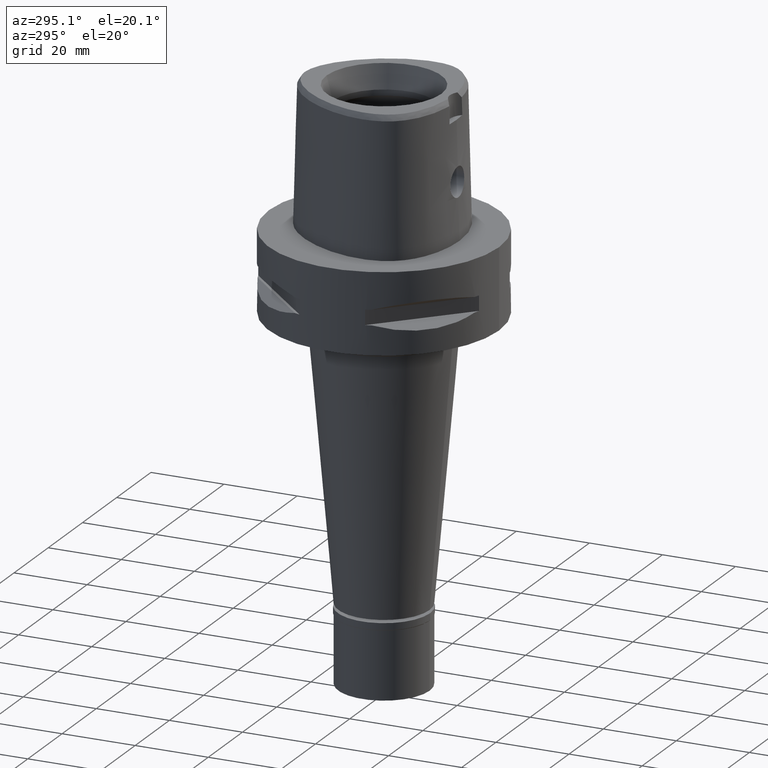
[diagram: clean part render]
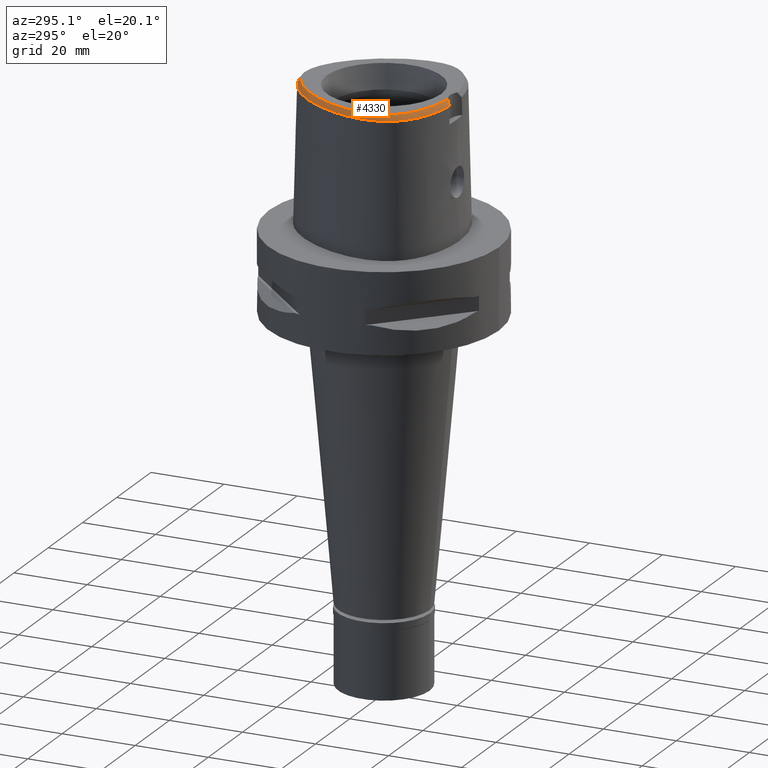
[diagram: same view with one face highlighted and labeled with its STEP entity id]
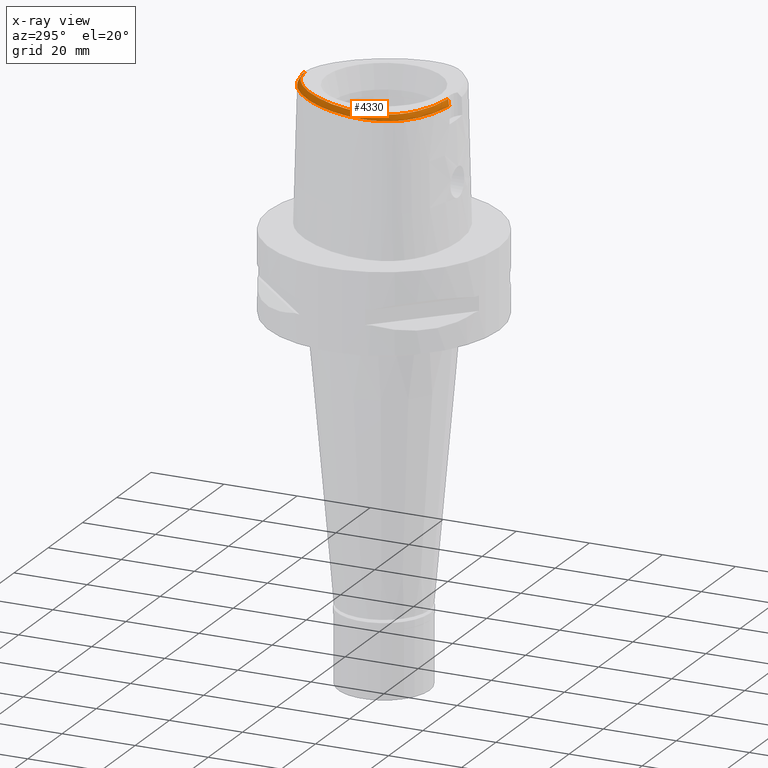
[diagram: x-ray of the same camera — body ghosted, the highlighted face saturated]
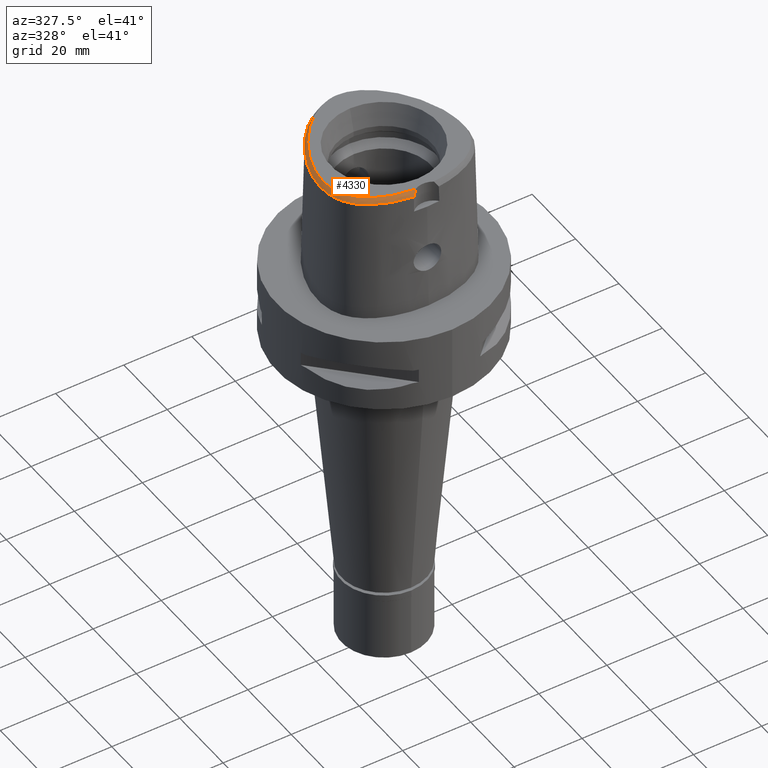
[diagram: same view with one face highlighted and labeled with its STEP entity id]
A machine part, auxiliary view. The second image highlights one B-rep face of the part: STEP entity #4330.
The next image is the same camera in x-ray: the body ghosted, the highlighted face saturated — about 0% of this face is hidden behind the body in this view.
A second angle (auxiliary view) of the same face is appended — the face is thin or edge-on in the first view.
In plain terms, the highlighted face is a freeform B-spline surface patch.
Its self-contained STEP definition (entity closure, byte-faithful):
#7 = CARTESIAN_POINT ( 'NONE',  ( -20.92147064322999839, -2.116709732244000275, 36.95369740508999712 ) ) ;
#25 = CARTESIAN_POINT ( 'NONE',  ( -11.46564124494626391, 15.92741340512973736, 37.99999999999744915 ) ) ;
#26 = CARTESIAN_POINT ( 'NONE',  ( 0.6289267705504999473, 22.28958895309000354, 36.95369737696000101 ) ) ;
#28 = CARTESIAN_POINT ( 'NONE',  ( -14.16768691555000004, 14.38231071795000027, 36.33926728082000324 ) ) ;
#43 = EDGE_CURVE ( 'NONE', #2735, #2066, #4693, .T. ) ;
#50 = CARTESIAN_POINT ( 'NONE',  ( -18.24302769442356009, 5.671232572958217588, 37.99999999999732836 ) ) ;
#53 = CARTESIAN_POINT ( 'NONE',  ( -21.36527818550999669, -3.234143585310999658, 36.33926776583000162 ) ) ;
#71 = CARTESIAN_POINT ( 'NONE',  ( -2.735698246182939553, 21.34559102902487027, 37.99999999999988631 ) ) ;
#75 = CARTESIAN_POINT ( 'NONE',  ( -20.29251928503000002, -4.310408830160000093, 38.18255744116999750 ) ) ;
#97 = CARTESIAN_POINT ( 'NONE',  ( -18.99520880203911588, -10.46968343926494427, 38.00000000000672884 ) ) ;
#102 = CARTESIAN_POINT ( 'NONE',  ( -19.44795708252000210, -9.190277671089001288, 38.18255740862999659 ) ) ;
#118 = DIRECTION ( 'NONE',  ( -1.028870294958013158E-11, -0.5092834681090075977, 0.8605988316927122295 ) ) ;
#133 = CARTESIAN_POINT ( 'NONE',  ( -20.89395157519000179, -6.256864602135999931, 36.95369798106999326 ) ) ;
#156 = CARTESIAN_POINT ( 'NONE',  ( -15.35613913231000005, -15.33514880510999845, 36.95369830678999534 ) ) ;
#165 = CARTESIAN_POINT ( 'NONE',  ( -7.073975453994999718, 20.18823819710999956, 36.95369769004000204 ) ) ;
#180 = CARTESIAN_POINT ( 'NONE',  ( -19.51946603146000214, -9.973870512151000511, 37.56812762266999783 ) ) ;
#189 = CARTESIAN_POINT ( 'NONE',  ( -13.32044662396000057, 13.69457079475000150, 38.18255751709000378 ) ) ;
#208 = CARTESIAN_POINT ( 'NONE',  ( -15.14873605808000079, -15.03626224452000137, 37.56812782930999361 ) ) ;
#220 = CARTESIAN_POINT ( 'NONE',  ( -8.730759612675999648, 18.65177153628000184, 37.56812743417000178 ) ) ;
#235 = CARTESIAN_POINT ( 'NONE',  ( -3.549775043671000052, -18.96231541947999943, 37.56812780826999898 ) ) ;
#244 = CARTESIAN_POINT ( 'NONE',  ( -4.604683579792999915, 21.78549079069999905, 36.33926777342999515 ) ) ;
#267 = CARTESIAN_POINT ( 'NONE',  ( -11.64753432682999978, 16.10709456885999913, 37.56812858085999807 ) ) ;
#273 = CARTESIAN_POINT ( 'NONE',  ( -1.703794773535000090E-11, 22.56201468012000078, 36.52186680743999858 ) ) ;
#282 = CARTESIAN_POINT ( 'NONE',  ( -2.340097459394999913, -19.79172375898000169, 36.33926876481999813 ) ) ;
#286 = CARTESIAN_POINT ( 'NONE',  ( -12.37132652997626536, -16.34104299088001611, 38.00000000000188294 ) ) ;
#313 = CARTESIAN_POINT ( 'NONE',  ( -11.69194181865000104, -17.71727317434999804, 36.33926754198000708 ) ) ;
#337 = CARTESIAN_POINT ( 'NONE',  ( -4.691700671387000199, -18.46023128026000037, 38.18255745641999965 ) ) ;
#339 = CARTESIAN_POINT ( 'NONE',  ( -3.339321438887166149, -19.25325016376296716, 37.10705438588944816 ) ) ;
#366 = CARTESIAN_POINT ( 'NONE',  ( -16.79122632845000140, 8.466764119743000805, 38.18255741672999903 ) ) ;
#394 = CARTESIAN_POINT ( 'NONE',  ( -20.61915681830999958, -5.295012521149999429, 37.56812783671999512 ) ) ;
#411 = CARTESIAN_POINT ( 'NONE',  ( -10.48962422759357871, 16.86631853279266124, 38.00000000000303402 ) ) ;
#412 = CARTESIAN_POINT ( 'NONE',  ( 0.3873224197701999882, 21.57393274058000188, 38.18255746055999822 ) ) ;
#416 = CARTESIAN_POINT ( 'NONE',  ( -20.77260507820999536, -0.9169822542518999420, 36.95369801481999872 ) ) ;
#423 = EDGE_CURVE ( 'NONE', #2066, #1132, #503, .T. ) ;
#433 = CARTESIAN_POINT ( 'NONE',  ( -4.757642277158413258, 21.67478330407710629, 36.52186244848005714 ) ) ;
#436 = CARTESIAN_POINT ( 'NONE',  ( -9.524337278001089757, 17.70558492631798231, 38.00000000000370903 ) ) ;
#439 = CARTESIAN_POINT ( 'NONE',  ( -20.59663228552999925, 1.764793281405000025, 36.33927213263000056 ) ) ;
#467 = CARTESIAN_POINT ( 'NONE',  ( -18.69494656516000219, 4.219276995192998925, 38.18255752865000119 ) ) ;
#490 = CARTESIAN_POINT ( 'NONE',  ( -21.25508366611000000, -6.300874089841999925, 36.33926826727000048 ) ) ;
#503 = LINE ( 'NONE', #2024, #4742 ) ;
#509 = CARTESIAN_POINT ( 'NONE',  ( -20.15090095364822176, -7.024227649787408545, 38.00000000000397904 ) ) ;
#516 = CARTESIAN_POINT ( 'NONE',  ( -19.12497591769000138, -12.14921629138999926, 36.33926750876999989 ) ) ;
#546 = CARTESIAN_POINT ( 'NONE',  ( -18.18393835204000197, -13.33950269444000014, 36.33926785797999770 ) ) ;
#557 = CARTESIAN_POINT ( 'NONE',  ( -11.90631571408999889, 16.36272903463000006, 36.95370012758999678 ) ) ;
#571 = CARTESIAN_POINT ( 'NONE',  ( -14.15343956157999905, -15.25309208026999919, 38.18255740488999805 ) ) ;
#580 = CARTESIAN_POINT ( 'NONE',  ( -12.63164210699000023, 15.06184036072000154, 37.56812780431999954 ) ) ;
#594 = CARTESIAN_POINT ( 'NONE',  ( -13.28312088783000178, -15.75643240474999729, 38.18255746722999788 ) ) ;
#605 = CARTESIAN_POINT ( 'NONE',  ( -8.947778726257000770, 18.94371772858000114, 36.95369734948000229 ) ) ;
#623 = CARTESIAN_POINT ( 'NONE',  ( -6.236709619031000074, -18.56936891179000071, 37.56812752670000322 ) ) ;
#633 = CARTESIAN_POINT ( 'NONE',  ( -5.162808560725999918, 20.76779773026999720, 37.56812770494000375 ) ) ;
#649 = CARTESIAN_POINT ( 'NONE',  ( -4.743174543436999180, -18.82031605083000159, 37.56812758189000334 ) ) ;
#662 = CARTESIAN_POINT ( 'NONE',  ( -5.311607256956000001, 21.09977700078000140, 36.95369800548999706 ) ) ;
#676 = CARTESIAN_POINT ( 'NONE',  ( -12.48085809552999947, -16.57208682407000211, 37.56812752467000394 ) ) ;
#679 = CARTESIAN_POINT ( 'NONE',  ( -10.17136073855220069, -17.24644253470149025, 38.00000000000613909 ) ) ;
#703 = CARTESIAN_POINT ( 'NONE',  ( -10.49819849688999973, -18.17373738543999906, 36.33927043530999867 ) ) ;
#707 = CARTESIAN_POINT ( 'NONE',  ( -2.841965291530327065, -18.76757795571511878, 37.99999999999839417 ) ) ;
#709 = B_SPLINE_SURFACE_WITH_KNOTS ( 'NONE', 3, 3, ( 
 ( #3985, #2402, #26, #2008 ),
 ( #412, #3591, #2821, #1232 ),
 ( #1623, #2597, #2152, #3424 ),
 ( #1783, #3449, #4627, #4197 ),
 ( #3842, #1027, #2987, #2203 ),
 ( #4551, #4965, #3736, #1423 ),
 ( #3065, #3374, #5018, #4939 ),
 ( #4987, #2574, #4224, #1449 ),
 ( #1060, #2620, #3036, #244 ),
 ( #3789, #633, #662, #4572 ),
 ( #2257, #1087, #4601, #1862 ),
 ( #2676, #3816, #165, #1759 ),
 ( #1399, #4168, #2233, #1002 ),
 ( #4911, #220, #605, #3343 ),
 ( #2175, #1813, #1370, #1479 ),
 ( #4145, #3398, #2960, #978 ),
 ( #2653, #267, #557, #4528 ),
 ( #1837, #580, #3760, #3010 ),
 ( #189, #3621, #2869, #28 ),
 ( #2451, #2824, #828, #1602 ),
 ( #4798, #883, #1627, #4435 ),
 ( #2423, #1206, #1251, #2482 ),
 ( #366, #1963, #2383, #3159 ),
 ( #5115, #2843, #3988, #4029 ),
 ( #2798, #3553, #4776, #3575 ),
 ( #467, #4007, #2062, #4725 ),
 ( #1648, #3211, #4388, #1581 ),
 ( #1182, #1234, #4407, #439 ),
 ( #4367, #3647, #4750, #3233 ),
 ( #809, #2405, #416, #850 ),
 ( #780, #2011, #7, #2771 ),
 ( #3254, #4340, #2035, #53 ),
 ( #75, #3595, #1672, #3967 ),
 ( #4819, #394, #1276, #1988 ),
 ( #3181, #3390, #133, #490 ),
 ( #911, #2586, #3362, #4929 ),
 ( #965, #1389, #3750, #2977 ),
 ( #2562, #4158, #2948, #3000 ),
 ( #102, #2089, #4080, #4953 ),
 ( #1799, #180, #1728, #2509 ),
 ( #2535, #1412, #4562, #1699 ),
 ( #3726, #4108, #3674, #3285 ),
 ( #1333, #4852, #1015, #516 ),
 ( #936, #1309, #4464, #2899 ),
 ( #3312, #4488, #4055, #546 ),
 ( #1773, #3776, #4879, #2114 ),
 ( #4137, #4901, #2191, #4516 ),
 ( #2143, #3701, #2925, #3335 ),
 ( #1358, #208, #156, #1752 ),
 ( #571, #2166, #4542, #993 ),
 ( #594, #3494, #3103, #4643 ),
 ( #1905, #676, #1100, #1125 ),
 ( #1545, #4288, #3129, #313 ),
 ( #2720, #2641, #4697, #703 ),
 ( #3807, #5061, #3438, #1076 ),
 ( #5004, #2667, #1826, #2270 ),
 ( #4185, #623, #4215, #1466 ),
 ( #337, #649, #4588, #4616 ),
 ( #3024, #235, #1519, #4667 ),
 ( #4977, #3054, #3886, #3080 ),
 ( #4236, #3412, #3855, #282 ),
 ( #1877, #732, #2610, #2327 ) ),
 .UNSPECIFIED., .F., .F., .F.,
 ( 4, 1, 1, 1, 1, 1, 1, 1, 1, 1, 1, 1, 1, 1, 1, 1, 1, 1, 1, 1, 1, 1, 1, 1, 1, 1, 1, 1, 1, 1, 1, 1, 1, 1, 1, 1, 1, 1, 1, 1, 1, 1, 1, 1, 1, 1, 1, 1, 1, 1, 1, 1, 1, 1, 1, 1, 1, 1, 1, 4 ),
 ( 4, 4 ),
 ( -0.01585043674195000044, 0.0000000000000000000, 0.01776034072165999858, 0.03552068144391999638, 0.05328102216616999870, 0.07104136288842999303, 0.08880170361069000817, 0.1065620443330000111, 0.1243223850551999909, 0.1420827257775000019, 0.1598430664997000095, 0.1776034072219000171, 0.1953637479442000002, 0.2131240886664000078, 0.2308844293887999943, 0.2486447701109999742, 0.2664051108332999851, 0.2841654515554999927, 0.3019257922778000314, 0.3196861329999999835, 0.3374464737223000221, 0.3552068144444999742, 0.3729671551668000129, 0.3907274958890999961, 0.4084878366113000037, 0.4262481773335999868, 0.4440085180557999944, 0.4617688587780999776, 0.4795291995003000407, 0.4972895402225999684, 0.5150498809447999760, 0.5328102216671000146, 0.5505705623893999423, 0.5683309031115999499, 0.5860912438338999886, 0.6038515845561001072, 0.6216119252783999238, 0.6393722660005999314, 0.6571326067228999701, 0.6748929474452000088, 0.6926532881674000164, 0.7104136288896999440, 0.7281739696118999516, 0.7459343103341999903, 0.7636946510563999979, 0.7814549917787000366, 0.7992153325008999332, 0.8169756732231999719, 0.8347360139455000105, 0.8524963546678000492, 0.8702566953900000568, 0.8880170361122000644, 0.9057773768344999921, 0.9235377175566999997, 0.9412980582790000383, 0.9590583990012000459, 0.9768187397236000047, 0.9945790804457999013, 1.000000000000000000, 1.006922200500000031 ),
 ( -0.09952382276335999811, 1.099545837143999893 ),
 .UNSPECIFIED. ) ;
#732 = CARTESIAN_POINT ( 'NONE',  ( -2.084302360773999663, -19.07887738431000102, 37.56812781015999292 ) ) ;
#780 = CARTESIAN_POINT ( 'NONE',  ( -20.19742045219999937, -2.187964372695000215, 38.18255750915999869 ) ) ;
#803 = CARTESIAN_POINT ( 'NONE',  ( -3.481017203588950615, 21.13509756881196466, 38.00000000000138556 ) ) ;
#809 = CARTESIAN_POINT ( 'NONE',  ( -20.05326577673999822, -1.025875127106000040, 38.18255740276999433 ) ) ;
#822 = CARTESIAN_POINT ( 'NONE',  ( -21.07430010673179410, -0.4408303445193112458, 36.52186244848005714 ) ) ;
#825 = CARTESIAN_POINT ( 'NONE',  ( -16.09805956313502406, 9.908742513517120543, 38.00000000000807177 ) ) ;
#828 = CARTESIAN_POINT ( 'NONE',  ( -14.84304560970999987, 12.91456535701999897, 36.95369814816000087 ) ) ;
#837 = B_SPLINE_CURVE_WITH_KNOTS ( 'NONE', 3,
 ( #2331, #4722, #339, #3890 ),
 .UNSPECIFIED., .F., .F.,
 ( 4, 4 ),
 ( 0.0000000000000000000, 1.000000000000000000 ),
 .UNSPECIFIED. ) ;
#845 = CARTESIAN_POINT ( 'NONE',  ( -20.30498420086393452, -2.177378896257883500, 38.00000000000625988 ) ) ;
#850 = CARTESIAN_POINT ( 'NONE',  ( -21.13227472894000059, -0.8625358178249000751, 36.33926832085000314 ) ) ;
#883 = CARTESIAN_POINT ( 'NONE',  ( -15.45985386675000051, 11.39869137622000039, 37.56812783854999793 ) ) ;
#892 = CARTESIAN_POINT ( 'NONE',  ( -3.470944899480999815E-11, 21.68728795390000030, 38.00000000000000000 ) ) ;
#907 = CARTESIAN_POINT ( 'NONE',  ( -19.98419490691469491, -7.809898894995823682, 37.99999999999914735 ) ) ;
#911 = CARTESIAN_POINT ( 'NONE',  ( -20.04453279968999979, -7.004985849489999694, 38.18255748050999898 ) ) ;
#929 = CARTESIAN_POINT ( 'NONE',  ( -1.703794773535000090E-11, 22.56201468012000078, 36.52186680743999858 ) ) ;
#936 = CARTESIAN_POINT ( 'NONE',  ( -17.82526424565000056, -12.07072610718000050, 38.18255739203000587 ) ) ;
#965 = CARTESIAN_POINT ( 'NONE',  ( -19.87913771971999921, -7.784445344282000079, 38.18255747433999403 ) ) ;
#978 = CARTESIAN_POINT ( 'NONE',  ( -11.15382432340000030, 17.59124342496999915, 36.33927187414000315 ) ) ;
#993 = CARTESIAN_POINT ( 'NONE',  ( -14.72469410495000020, -16.18301840595999863, 36.33926830152999798 ) ) ;
#1002 = CARTESIAN_POINT ( 'NONE',  ( -8.199366118679000337, 19.91347969987999988, 36.33926784298999735 ) ) ;
#1015 = CARTESIAN_POINT ( 'NONE',  ( -18.82622316747999847, -11.94154976933000079, 36.95369750318999991 ) ) ;
#1027 = CARTESIAN_POINT ( 'NONE',  ( -1.355466021452000014, 21.86473887791999715, 37.56812741837999425 ) ) ;
#1060 = CARTESIAN_POINT ( 'NONE',  ( -4.216071405948000006, 20.76559193177000040, 38.18255746293999664 ) ) ;
#1076 = CARTESIAN_POINT ( 'NONE',  ( -9.209811283971999885, -18.59256748385999813, 36.33927205204999922 ) ) ;
#1078 = CARTESIAN_POINT ( 'NONE',  ( -2.682279906006999948, -18.78035848609999903, 38.00000000000000000 ) ) ;
#1087 = CARTESIAN_POINT ( 'NONE',  ( -6.011059413787000594, 20.35945456055000236, 37.56812774185000592 ) ) ;
#1100 = CARTESIAN_POINT ( 'NONE',  ( -12.63668991822000010, -16.90079555257999999, 36.95369756873999734 ) ) ;
#1103 = CARTESIAN_POINT ( 'NONE',  ( -4.706994425064510601, -18.56721852572643172, 38.00000000000746070 ) ) ;
#1125 = CARTESIAN_POINT ( 'NONE',  ( -12.79252174089999983, -17.22950428108000054, 36.33926761281000495 ) ) ;
#1130 = CARTESIAN_POINT ( 'NONE',  ( -17.91005512243567210, -12.13778127739915469, 37.99999999999945288 ) ) ;
#1132 = VERTEX_POINT ( 'NONE', #892 ) ;
#1155 = CARTESIAN_POINT ( 'NONE',  ( -15.71788912669399352, -14.29843101565927377, 37.99999999999455724 ) ) ;
#1182 = CARTESIAN_POINT ( 'NONE',  ( -19.53965903295999951, 1.493372122925999967, 38.18255698374999696 ) ) ;
#1202 = CARTESIAN_POINT ( 'NONE',  ( -19.26324493738480470, 2.868570891456998950, 38.00000000000506617 ) ) ;
#1206 = CARTESIAN_POINT ( 'NONE',  ( -16.31743383605000020, 10.04004715791000102, 37.56812757850999418 ) ) ;
#1231 = CARTESIAN_POINT ( 'NONE',  ( -15.24692477332553686, 11.25717358966314485, 38.00000000000265032 ) ) ;
#1232 = CARTESIAN_POINT ( 'NONE',  ( 0.4278526769691000098, 22.66417900368000105, 36.33926779507000049 ) ) ;
#1234 = CARTESIAN_POINT ( 'NONE',  ( -19.89198345048000149, 1.583845842419000061, 37.56812870004000615 ) ) ;
#1246 = CARTESIAN_POINT ( 'NONE',  ( -17.90324032096644302, -13.53935111954995207, 36.52186244848005714 ) ) ;
#1251 = CARTESIAN_POINT ( 'NONE',  ( -16.62954014644000011, 10.22685579118000021, 36.95369769917000013 ) ) ;
#1270 = CARTESIAN_POINT ( 'NONE',  ( -5.893543501600900569, 20.13235399351656696, 38.00000000000505196 ) ) ;
#1276 = CARTESIAN_POINT ( 'NONE',  ( -20.98219059448000223, -5.318546722515000269, 36.95369832475000038 ) ) ;
#1301 = CARTESIAN_POINT ( 'NONE',  ( -19.88562090098768564, 4.345879983791615331, 36.52186244848005714 ) ) ;
#1304 = CARTESIAN_POINT ( 'NONE',  ( -20.27898581531853495, -6.181921586190053830, 37.99999999999572964 ) ) ;
#1309 = CARTESIAN_POINT ( 'NONE',  ( -18.11064315489000265, -12.29641231377999944, 37.56812773418999996 ) ) ;
#1333 = CARTESIAN_POINT ( 'NONE',  ( -18.22871766705999974, -11.52621672519999940, 38.18255749202999993 ) ) ;
#1358 = CARTESIAN_POINT ( 'NONE',  ( -14.94133298384999975, -14.73737568391999986, 38.18255735182999899 ) ) ;
#1370 = CARTESIAN_POINT ( 'NONE',  ( -9.919125040175002184, 18.18293205626000031, 36.95369866842000306 ) ) ;
#1389 = CARTESIAN_POINT ( 'NONE',  ( -20.23272653288000100, -7.870113836157001330, 37.56812753946999806 ) ) ;
#1399 = CARTESIAN_POINT ( 'NONE',  ( -7.595407440080000683, 19.00449911577999984, 38.18255745529000222 ) ) ;
#1412 = CARTESIAN_POINT ( 'NONE',  ( -19.22184362975000127, -10.58817459622000179, 37.56812749740999635 ) ) ;
#1423 = CARTESIAN_POINT ( 'NONE',  ( -2.198784943771000311, 22.46925618198000052, 36.33926778522999257 ) ) ;
#1449 = CARTESIAN_POINT ( 'NONE',  ( -3.776930538523000092, 22.07287095113999698, 36.33926826387999398 ) ) ;
#1466 = CARTESIAN_POINT ( 'NONE',  ( -6.374238655745999793, -19.28374802939000077, 36.33926762062999671 ) ) ;
#1479 = CARTESIAN_POINT ( 'NONE',  ( -10.15095994762000053, 18.46324907287999650, 36.33926935826999483 ) ) ;
#1496 = CARTESIAN_POINT ( 'NONE',  ( -16.36032397154061258, -13.76458520345272341, 38.00000000000350298 ) ) ;
#1519 = CARTESIAN_POINT ( 'NONE',  ( -3.588014974792000267, -19.32396908895999843, 36.95369825582000090 ) ) ;
#1521 = CARTESIAN_POINT ( 'NONE',  ( -11.31790883121207969, -16.80796958613478864, 37.99999999999740652 ) ) ;
#1545 = CARTESIAN_POINT ( 'NONE',  ( -11.27679292332999950, -16.70801358272000314, 38.18255748837999164 ) ) ;
#1550 = CARTESIAN_POINT ( 'NONE',  ( -17.45119705493836904, -12.68365517585379187, 38.00000000000307665 ) ) ;
#1576 = CARTESIAN_POINT ( 'NONE',  ( -8.930096025510261271, -17.65000298921394517, 37.99999999999953104 ) ) ;
#1581 = CARTESIAN_POINT ( 'NONE',  ( -20.20233240157000054, 3.159690596148000186, 36.33926991292999276 ) ) ;
#1598 = CARTESIAN_POINT ( 'NONE',  ( -13.40435640711272747, 13.76268382997135298, 37.99999999999702283 ) ) ;
#1602 = CARTESIAN_POINT ( 'NONE',  ( -15.13609080432999932, 13.13005028183000000, 36.33926853247999844 ) ) ;
#1623 = CARTESIAN_POINT ( 'NONE',  ( -0.02532435228039000077, 21.58521746514999862, 38.18255742366999783 ) ) ;
#1627 = CARTESIAN_POINT ( 'NONE',  ( -15.76279054588999884, 11.60003036474000027, 36.95369832918999720 ) ) ;
#1641 = CARTESIAN_POINT ( 'NONE',  ( -21.32871527669848533, -4.105831244393919555, 36.52186244848005714 ) ) ;
#1645 = CARTESIAN_POINT ( 'NONE',  ( -0.2181979014508348969, 21.68728795389360897, 37.99999999999755573 ) ) ;
#1648 = CARTESIAN_POINT ( 'NONE',  ( -19.16001491499000053, 2.836569299718999737, 38.18255722776000738 ) ) ;
#1666 = CARTESIAN_POINT ( 'NONE',  ( -13.70645028111365527, 15.04851272300774845, 36.52186244848005714 ) ) ;
#1668 = CARTESIAN_POINT ( 'NONE',  ( -4.254559144977395846, 20.86660163697408521, 37.99999999999924682 ) ) ;
#1672 = CARTESIAN_POINT ( 'NONE',  ( -21.02006458961999869, -4.317199258171999787, 36.95369779474000183 ) ) ;
#1694 = CARTESIAN_POINT ( 'NONE',  ( -19.78262210840474467, -8.543146992552438590, 38.00000000000077449 ) ) ;
#1699 = CARTESIAN_POINT ( 'NONE',  ( -19.86671560079000187, -10.92533206978999871, 36.33926750797999716 ) ) ;
#1720 = CARTESIAN_POINT ( 'NONE',  ( -10.91891098965177420, -18.03046406390702217, 36.52186244848005714 ) ) ;
#1728 = CARTESIAN_POINT ( 'NONE',  ( -19.85173883435999898, -10.12210006960000008, 36.95369780616999833 ) ) ;
#1747 = CARTESIAN_POINT ( 'NONE',  ( -21.14970188363901116, -6.717195958887973717, 36.52186244848005714 ) ) ;
#1752 = CARTESIAN_POINT ( 'NONE',  ( -15.56354220655000020, -15.63403536570999819, 36.33926878427000418 ) ) ;
#1759 = CARTESIAN_POINT ( 'NONE',  ( -7.258686705342000778, 20.50164200618999999, 36.33926780534999779 ) ) ;
#1773 = CARTESIAN_POINT ( 'NONE',  ( -16.86030798744999970, -13.14913462574999947, 38.18255747004999989 ) ) ;
#1783 = CARTESIAN_POINT ( 'NONE',  ( -0.6431255064981999947, 21.56589148699999825, 38.18255748684999418 ) ) ;
#1799 = CARTESIAN_POINT ( 'NONE',  ( -19.18719322855999820, -9.825640954705999519, 38.18255743916999734 ) ) ;
#1813 = CARTESIAN_POINT ( 'NONE',  ( -9.687290132726998237, 17.90261503964000056, 37.56812797857999442 ) ) ;
#1826 = CARTESIAN_POINT ( 'NONE',  ( -7.745987544590000162, -18.61193247438999876, 36.95369958702000446 ) ) ;
#1837 = CARTESIAN_POINT ( 'NONE',  ( -12.36065378014999894, 14.81918995474000056, 38.18255736239000697 ) ) ;
#1855 = ORIENTED_EDGE ( 'NONE', *, *, #3168, .T. ) ;
#1862 = CARTESIAN_POINT ( 'NONE',  ( -6.345441903388000071, 21.00565175698999809, 36.33926844794999766 ) ) ;
#1877 = CARTESIAN_POINT ( 'NONE',  ( -2.061974916248999978, -18.71595758687000099, 38.18255735992000410 ) ) ;
#1905 = CARTESIAN_POINT ( 'NONE',  ( -12.32502627284999974, -16.24337809556000067, 38.18255748059999632 ) ) ;
#1963 = CARTESIAN_POINT ( 'NONE',  ( -17.11181643331000046, 8.638606699664999056, 37.56812767577999779 ) ) ;
#1988 = CARTESIAN_POINT ( 'NONE',  ( -21.34522437065999867, -5.342080923879999332, 36.33926881277999854 ) ) ;
#1996 = ORIENTED_EDGE ( 'NONE', *, *, #43, .F. ) ;
#2006 = CARTESIAN_POINT ( 'NONE',  ( -20.38301517463031942, -3.278344853328307273, 38.00000000000193268 ) ) ;
#2008 = CARTESIAN_POINT ( 'NONE',  ( 0.6490938487363999698, 22.65261838697000130, 36.33926730841000108 ) ) ;
#2011 = CARTESIAN_POINT ( 'NONE',  ( -20.55944554771999933, -2.152337052470000067, 37.56812745711999924 ) ) ;
#2024 = CARTESIAN_POINT ( 'NONE',  ( -1.703794773535000090E-11, 22.56201468012000078, 36.52186680743999858 ) ) ;
#2032 = CARTESIAN_POINT ( 'NONE',  ( -20.16012968311588338, -1.009698174524593872, 38.00000000000433431 ) ) ;
#2035 = CARTESIAN_POINT ( 'NONE',  ( -21.00186513766999852, -3.250496962512999577, 36.95369766515000265 ) ) ;
#2055 = CARTESIAN_POINT ( 'NONE',  ( -19.55745547456322697, -11.29150218116863336, 36.52186244848005714 ) ) ;
#2062 = CARTESIAN_POINT ( 'NONE',  ( -19.37853128287999738, 4.468195501303000583, 36.95369729331000030 ) ) ;
#2066 = VERTEX_POINT ( 'NONE', #273 ) ;
#2089 = CARTESIAN_POINT ( 'NONE',  ( -19.78870568295999988, -9.317810397906999498, 37.56812769494000293 ) ) ;
#2114 = CARTESIAN_POINT ( 'NONE',  ( -17.62842250397000399, -13.92456531003999842, 36.33926770875000045 ) ) ;
#2143 = CARTESIAN_POINT ( 'NONE',  ( -15.65131359767000063, -14.21327354617000083, 38.18255744404999774 ) ) ;
#2152 = CARTESIAN_POINT ( 'NONE',  ( -0.02690649736082000032, 22.31285671499000145, 36.95369789498000301 ) ) ;
#2166 = CARTESIAN_POINT ( 'NONE',  ( -14.34385774270000091, -15.56306752216999989, 37.56812770377000277 ) ) ;
#2175 = CARTESIAN_POINT ( 'NONE',  ( -9.455455225278999620, 17.62229802302000081, 38.18255728873000265 ) ) ;
#2191 = CARTESIAN_POINT ( 'NONE',  ( -16.76957177250999820, -14.22970566240000068, 36.95369756365000313 ) ) ;
#2203 = CARTESIAN_POINT ( 'NONE',  ( -1.445926234764000062, 22.58676608102000216, 36.33926720406999777 ) ) ;
#2233 = CARTESIAN_POINT ( 'NONE',  ( -7.998046559146000156, 19.61048617184999898, 36.95369771376000045 ) ) ;
#2257 = CARTESIAN_POINT ( 'NONE',  ( -5.843868168987000011, 20.03635596231999827, 38.18255738880000649 ) ) ;
#2270 = CARTESIAN_POINT ( 'NONE',  ( -7.832086836765999038, -18.96534810253000103, 36.33927081630000089 ) ) ;
#2327 = CARTESIAN_POINT ( 'NONE',  ( -2.128957249825000009, -19.80471697918000018, 36.33926871065000341 ) ) ;
#2331 = CARTESIAN_POINT ( 'NONE',  ( -2.682279906006999948, -18.78035848609999903, 38.00000000000000000 ) ) ;
#2351 = CARTESIAN_POINT ( 'NONE',  ( -2.682279906006999948, -18.78035848609999903, 38.00000000000000000 ) ) ;
#2383 = CARTESIAN_POINT ( 'NONE',  ( -17.43240653816999952, 8.810449279586000770, 36.95369793482999654 ) ) ;
#2401 = CARTESIAN_POINT ( 'NONE',  ( -3.470944899480999815E-11, 21.68728795390000030, 38.00000000000000000 ) ) ;
#2402 = CARTESIAN_POINT ( 'NONE',  ( 0.6087596923645999247, 21.92655951921000224, 37.56812744550999383 ) ) ;
#2405 = CARTESIAN_POINT ( 'NONE',  ( -20.41293542746999989, -0.9714286906789000309, 37.56812770880000585 ) ) ;
#2418 = CARTESIAN_POINT ( 'NONE',  ( -10.15538788053206787, 18.47129535094278197, 36.52186244848005714 ) ) ;
#2420 = CARTESIAN_POINT ( 'NONE',  ( -14.34402387965629089, 12.54761970512424440, 37.99999999999884892 ) ) ;
#2423 = CARTESIAN_POINT ( 'NONE',  ( -16.00532752565000294, 9.853238524631001027, 38.18255745785000244 ) ) ;
#2451 = CARTESIAN_POINT ( 'NONE',  ( -14.25695522046000008, 12.48359550740999957, 38.18255737949999684 ) ) ;
#2476 = CARTESIAN_POINT ( 'NONE',  ( -5.058220461388799549, 20.53445508814325748, 37.99999999999641176 ) ) ;
#2482 = CARTESIAN_POINT ( 'NONE',  ( -16.94164645683000003, 10.41366442446000029, 36.33926781982999898 ) ) ;
#2505 = CARTESIAN_POINT ( 'NONE',  ( -19.64434054693062137, 1.520253387635795761, 37.99999999999685940 ) ) ;
#2509 = CARTESIAN_POINT ( 'NONE',  ( -20.18401163725999936, -10.27032962703999885, 36.33926798966999883 ) ) ;
#2535 = CARTESIAN_POINT ( 'NONE',  ( -18.89940764422999919, -10.41959585943000022, 38.18255749212999461 ) ) ;
#2562 = CARTESIAN_POINT ( 'NONE',  ( -19.67927015421000192, -8.511465398051999642, 38.18255746279000107 ) ) ;
#2574 = CARTESIAN_POINT ( 'NONE',  ( -3.557969291371000153, 21.37896498240000298, 37.56812769397999574 ) ) ;
#2586 = CARTESIAN_POINT ( 'NONE',  ( -20.40253390670999778, -7.069747580808999565, 37.56812752489000218 ) ) ;
#2597 = CARTESIAN_POINT ( 'NONE',  ( -0.02611542482060999829, 21.94903709007000003, 37.56812765933000264 ) ) ;
#2610 = CARTESIAN_POINT ( 'NONE',  ( -2.106629805299999880, -19.44179718174000016, 36.95369826041000749 ) ) ;
#2615 = ORIENTED_EDGE ( 'NONE', *, *, #3047, .F. ) ;
#2620 = CARTESIAN_POINT ( 'NONE',  ( -4.345608797229999709, 21.10555821807999877, 37.56812756643999762 ) ) ;
#2641 = CARTESIAN_POINT ( 'NONE',  ( -10.25635470434999874, -17.48758501234000207, 37.56812825866000338 ) ) ;
#2653 = CARTESIAN_POINT ( 'NONE',  ( -11.38875293956999890, 15.85146010308999998, 38.18255703412999935 ) ) ;
#2667 = CARTESIAN_POINT ( 'NONE',  ( -7.659888252413000309, -18.25851684625000004, 37.56812835774000092 ) ) ;
#2669 = CARTESIAN_POINT ( 'NONE',  ( -3.522896839653678391, -18.70811514173665557, 38.00000000000259348 ) ) ;
#2676 = CARTESIAN_POINT ( 'NONE',  ( -6.704552951300999375, 19.56143057894999870, 38.18255745943000079 ) ) ;
#2720 = CARTESIAN_POINT ( 'NONE',  ( -10.13543280809000002, -17.14450882579999913, 38.18255717033999730 ) ) ;
#2735 = VERTEX_POINT ( 'NONE', #2978 ) ;
#2745 = CARTESIAN_POINT ( 'NONE',  ( -18.67608643721797890, -11.03561202291329124, 38.00000000000146372 ) ) ;
#2771 = CARTESIAN_POINT ( 'NONE',  ( -21.28349573874000100, -2.081082412018999683, 36.33926735304999767 ) ) ;
#2793 = CARTESIAN_POINT ( 'NONE',  ( -16.88647904404935574, 8.517821442302313528, 38.00000000000604672 ) ) ;
#2798 = CARTESIAN_POINT ( 'NONE',  ( -18.14336706911999997, 5.629425103783000317, 38.18255742285999332 ) ) ;
#2819 = CARTESIAN_POINT ( 'NONE',  ( -2.017025177696077698, 21.50280829368164248, 37.99999999999497646 ) ) ;
#2821 = CARTESIAN_POINT ( 'NONE',  ( 0.4143425912361000107, 22.30076358265000280, 36.95369768356999884 ) ) ;
#2824 = CARTESIAN_POINT ( 'NONE',  ( -14.55000041508999864, 12.69908043222000060, 37.56812776382999886 ) ) ;
#2838 = CARTESIAN_POINT ( 'NONE',  ( -18.90964971338252099, -12.28759719905104930, 36.52186244848005714 ) ) ;
#2843 = CARTESIAN_POINT ( 'NONE',  ( -17.83506418103999991, 7.208774724647000198, 37.56812784617999057 ) ) ;
#2869 = CARTESIAN_POINT ( 'NONE',  ( -13.88527348502000081, 14.15306407689000068, 36.95369735957000046 ) ) ;
#2891 = CARTESIAN_POINT ( 'NONE',  ( -0.7901461696974417803, 22.56201478746380573, 36.52186244848005714 ) ) ;
#2894 = CARTESIAN_POINT ( 'NONE',  ( -19.94188961899161328, 0.2242544969875199523, 38.00000000000758149 ) ) ;
#2899 = CARTESIAN_POINT ( 'NONE',  ( -18.68140097336000238, -12.74778472696999998, 36.33926841850999523 ) ) ;
#2920 = CARTESIAN_POINT ( 'NONE',  ( -16.39211280191667441, -14.95758113318699323, 36.52186244848005714 ) ) ;
#2922 = ORIENTED_EDGE ( 'NONE', *, *, #423, .F. ) ;
#2925 = CARTESIAN_POINT ( 'NONE',  ( -16.09945737385999820, -14.78649903168000002, 36.95369777818000045 ) ) ;
#2948 = CARTESIAN_POINT ( 'NONE',  ( -20.37496924529999731, -8.724725579436999112, 36.95369767079999690 ) ) ;
#2960 = CARTESIAN_POINT ( 'NONE',  ( -10.90808669659000074, 17.32303912367000009, 36.95370025348000098 ) ) ;
#2977 = CARTESIAN_POINT ( 'NONE',  ( -20.93990415919999748, -8.041450819909000458, 36.33926766972000166 ) ) ;
#2978 = CARTESIAN_POINT ( 'NONE',  ( -3.637738201363999835, -19.56971413236999879, 36.52186244848000030 ) ) ;
#2987 = CARTESIAN_POINT ( 'NONE',  ( -1.400696128107999927, 22.22575247946999966, 36.95369731123000179 ) ) ;
#3000 = CARTESIAN_POINT ( 'NONE',  ( -20.72281879084999900, -8.831355670128999691, 36.33926777479999970 ) ) ;
#3010 = CARTESIAN_POINT ( 'NONE',  ( -13.17361876066000015, 15.54714117267000084, 36.33926868817999889 ) ) ;
#3024 = CARTESIAN_POINT ( 'NONE',  ( -3.511535112549000193, -18.60066175000000044, 38.18255736072000417 ) ) ;
#3036 = CARTESIAN_POINT ( 'NONE',  ( -4.475146188511000211, 21.44552450439000069, 36.95369766993000127 ) ) ;
#3047 = EDGE_CURVE ( 'NONE', #4299, #2735, #837, .T. ) ;
#3054 = CARTESIAN_POINT ( 'NONE',  ( -2.658684752316000210, -19.04013043316999898, 37.56812783786999432 ) ) ;
#3065 = CARTESIAN_POINT ( 'NONE',  ( -2.709347651430000337, 21.24075384196000371, 38.18255739455000253 ) ) ;
#3080 = CARTESIAN_POINT ( 'NONE',  ( -2.715746109086999649, -19.76513334556000245, 36.33926881720999802 ) ) ;
#3103 = CARTESIAN_POINT ( 'NONE',  ( -13.62949596136999908, -16.39625862740999906, 36.95369764536999924 ) ) ;
#3129 = CARTESIAN_POINT ( 'NONE',  ( -11.55355885353999845, -17.38085331048000270, 36.95369752411999542 ) ) ;
#3133 = CARTESIAN_POINT ( 'NONE',  ( -18.31748213707601991, -11.58791794387614793, 37.99999999999585043 ) ) ;
#3159 = CARTESIAN_POINT ( 'NONE',  ( -17.75299664303000213, 8.982291859508000798, 36.33926819388000240 ) ) ;
#3168 = EDGE_CURVE ( 'NONE', #4299, #1132, #3901, .T. ) ;
#3177 = CARTESIAN_POINT ( 'NONE',  ( -19.28591707036371616, -9.869682450886697822, 37.99999999999887734 ) ) ;
#3181 = CARTESIAN_POINT ( 'NONE',  ( -20.17168739335000183, -6.168845626725000031, 38.18255740864999126 ) ) ;
#3211 = CARTESIAN_POINT ( 'NONE',  ( -19.50745407718000024, 2.944276398529000360, 37.56812812282000635 ) ) ;
#3233 = CARTESIAN_POINT ( 'NONE',  ( -20.90524599652999882, 0.4208057455178000339, 36.33927136514000011 ) ) ;
#3250 = CARTESIAN_POINT ( 'NONE',  ( -20.36398648679385204, -5.278470727084835445, 37.99999999999987210 ) ) ;
#3254 = CARTESIAN_POINT ( 'NONE',  ( -20.27503904197000040, -3.283203716917999948, 38.18255746378000026 ) ) ;
#3279 = CARTESIAN_POINT ( 'NONE',  ( -0.6498990081534093965, 21.67378274708474351, 38.00000000000054712 ) ) ;
#3285 = CARTESIAN_POINT ( 'NONE',  ( -19.51702485152999600, -11.54548396885000017, 36.33926799942000230 ) ) ;
#3306 = CARTESIAN_POINT ( 'NONE',  ( -4.467522189396071930, -19.48130287050887333, 36.52186244848005714 ) ) ;
#3312 = CARTESIAN_POINT ( 'NONE',  ( -17.37064981796999774, -12.61156055568999967, 38.18255745364999854 ) ) ;
#3335 = CARTESIAN_POINT ( 'NONE',  ( -16.32352926196000098, -15.07311177443000005, 36.33926794523999604 ) ) ;
#3343 = CARTESIAN_POINT ( 'NONE',  ( -9.164797839838000115, 19.23566392088000043, 36.33926726478999569 ) ) ;
#3362 = CARTESIAN_POINT ( 'NONE',  ( -20.76053501372999932, -7.134509312127000236, 36.95369756926999827 ) ) ;
#3374 = CARTESIAN_POINT ( 'NONE',  ( -2.798035305968999964, 21.59360220520999718, 37.56812772823000302 ) ) ;
#3390 = CARTESIAN_POINT ( 'NONE',  ( -20.53281948427000003, -6.212855114429999936, 37.56812769486000292 ) ) ;
#3398 = CARTESIAN_POINT ( 'NONE',  ( -10.66234906977999941, 17.05483482237000104, 37.56812863283000326 ) ) ;
#3412 = CARTESIAN_POINT ( 'NONE',  ( -2.290987361452999860, -19.06615828157999815, 37.56812782424999142 ) ) ;
#3424 = CARTESIAN_POINT ( 'NONE',  ( -0.02769756990104000130, 22.67667633992000020, 36.33926813064000072 ) ) ;
#3438 = CARTESIAN_POINT ( 'NONE',  ( -9.106323548527999634, -18.24384190629999836, 36.95370036557000049 ) ) ;
#3449 = CARTESIAN_POINT ( 'NONE',  ( -0.6659229416164000881, 21.92901888096999841, 37.56812750988000005 ) ) ;
#3473 = CARTESIAN_POINT ( 'NONE',  ( -13.33457781970414580, -15.85148397417798449, 38.00000000000212452 ) ) ;
#3494 = CARTESIAN_POINT ( 'NONE',  ( -13.45630842459999954, -16.07634551607999995, 37.56812755629999856 ) ) ;
#3522 = CARTESIAN_POINT ( 'NONE',  ( -7.599370508970504368, -18.01010694911327903, 38.00000000000772360 ) ) ;
#3553 = CARTESIAN_POINT ( 'NONE',  ( -18.47879278497000044, 5.770135642506000195, 37.56812766124999570 ) ) ;
#3570 = CARTESIAN_POINT ( 'NONE',  ( -12.44116897271498701, 14.89128547409761438, 38.00000000000278533 ) ) ;
#3575 = CARTESIAN_POINT ( 'NONE',  ( -19.14964421666000050, 6.051556719951999952, 36.33926813800999867 ) ) ;
#3591 = CARTESIAN_POINT ( 'NONE',  ( 0.4008325055031999873, 21.93734816161000012, 37.56812757207000431 ) ) ;
#3595 = CARTESIAN_POINT ( 'NONE',  ( -20.65629193733000335, -4.313804044165999940, 37.56812761795000455 ) ) ;
#3613 = CARTESIAN_POINT ( 'NONE',  ( -7.108589416785631165, 20.52412325828924011, 36.52186244848005714 ) ) ;
#3616 = CARTESIAN_POINT ( 'NONE',  ( -18.79649882725101762, 4.256255933891477383, 37.99999999999619149 ) ) ;
#3621 = CARTESIAN_POINT ( 'NONE',  ( -13.60286005448999980, 13.92381743582000198, 37.56812743832999502 ) ) ;
#3647 = CARTESIAN_POINT ( 'NONE',  ( -20.19240987536000276, 0.2753675329510000269, 37.56812850045999852 ) ) ;
#3666 = CARTESIAN_POINT ( 'NONE',  ( -2.376843896516650290, 22.39422508474085660, 36.52186244848005714 ) ) ;
#3674 = CARTESIAN_POINT ( 'NONE',  ( -19.20589841308000345, -11.35684394490999871, 36.95369781231999440 ) ) ;
#3701 = CARTESIAN_POINT ( 'NONE',  ( -15.87538548576999986, -14.49988628893000175, 37.56812761111000043 ) ) ;
#3726 = CARTESIAN_POINT ( 'NONE',  ( -18.58364553618000414, -10.97956389704000024, 38.18255743809999814 ) ) ;
#3736 = CARTESIAN_POINT ( 'NONE',  ( -2.131538320582000434, 22.11169433878000135, 36.95369767736000455 ) ) ;
#3750 = CARTESIAN_POINT ( 'NONE',  ( -20.58631534603999924, -7.955782328033000006, 36.95369760460000208 ) ) ;
#3760 = CARTESIAN_POINT ( 'NONE',  ( -12.90263043382999975, 15.30449076668999808, 36.95369824624999922 ) ) ;
#3776 = CARTESIAN_POINT ( 'NONE',  ( -17.11634615961999728, -13.40761152050999883, 37.56812754962000156 ) ) ;
#3789 = CARTESIAN_POINT ( 'NONE',  ( -5.014009864496999924, 20.43581845974999922, 38.18255740438999624 ) ) ;
#3807 = CARTESIAN_POINT ( 'NONE',  ( -8.899348077639000820, -17.54639075116000058, 38.18255699261000302 ) ) ;
#3816 = CARTESIAN_POINT ( 'NONE',  ( -6.889264202647999547, 19.87483438803000269, 37.56812757473999653 ) ) ;
#3842 = CARTESIAN_POINT ( 'NONE',  ( -1.310235914795999879, 21.50372527637999909, 38.18255752553000093 ) ) ;
#3855 = CARTESIAN_POINT ( 'NONE',  ( -2.315542410423999886, -19.42894102027999992, 36.95369829454000410 ) ) ;
#3886 = CARTESIAN_POINT ( 'NONE',  ( -2.687215430702000418, -19.40263188935999850, 36.95369832753999617 ) ) ;
#3890 = CARTESIAN_POINT ( 'NONE',  ( -3.637738201363999835, -19.56971413236999879, 36.52186244848000030 ) ) ;
#3901 = B_SPLINE_CURVE_WITH_KNOTS ( 'NONE', 3,
 ( #1078, #707, #2669, #1103, #4239, #3522, #1576, #679, #1521, #286, #3473, #5085, #5039, #1155, #1496, #4672, #1550, #1130, #3133, #2745, #97, #3177, #4459, #1694, #907, #509, #1304, #3250, #4772, #2006, #845, #2032, #2894, #2505, #1202, #3616, #50, #4076, #2793, #825, #1231, #2420, #1598, #3570, #25, #411, #436, #4744, #3984, #4362, #1270, #2476, #1668, #803, #71, #2819, #4025, #3279, #1645, #2401 ),
 .UNSPECIFIED., .F., .F.,
 ( 4, 1, 1, 1, 1, 1, 1, 1, 1, 1, 1, 1, 1, 1, 1, 1, 1, 1, 1, 1, 1, 1, 1, 1, 1, 1, 1, 1, 1, 1, 1, 1, 1, 1, 1, 1, 1, 1, 1, 1, 1, 1, 1, 1, 1, 1, 1, 1, 1, 1, 1, 1, 1, 1, 1, 1, 1, 4 ),
 ( 0.0000000000000000000, 0.005420919554200098744, 0.02318126027639999531, 0.04094160099879995407, 0.05870194172099996166, 0.07646228244330000035, 0.09422262316550000794, 0.1119829638877999356, 0.1297433046099999432, 0.1475036453321999508, 0.1652639860544999895, 0.1830243267768000281, 0.2007846674991000668, 0.2185450082212999634, 0.2363053489436000021, 0.2540656896658000097, 0.2718260303881000484, 0.2895863711103000560, 0.3073467118325999836, 0.3251070525547999912, 0.3428673932771000299, 0.3606277339994000686, 0.3783880747216000762, 0.3961484154438998928, 0.4139087561661000114, 0.4316690968884000501, 0.4494294376106000577, 0.4671897783328999854, 0.4849501190552000240, 0.5027104597774000316, 0.5204708004996999593, 0.5382311412219000779, 0.5559914819442000056, 0.5737518226664000132, 0.5915121633886999408, 0.6092725041108999484, 0.6270328448331999871, 0.6447931855555000258, 0.6625535262777000334, 0.6803138669999999610, 0.6980742077221999686, 0.7158345484445000073, 0.7335948891667000149, 0.7513552298890000536, 0.7691155706112000612, 0.7868759113336000199, 0.8046362520558000275, 0.8223965927780999552, 0.8401569335002999628, 0.8579172742224999704, 0.8756776149448000091, 0.8934379556670000166, 0.9111982963893099363, 0.9289586371115700070, 0.9467189778338299666, 0.9644793185560800453, 0.9822396592783400049, 1.000000000000000000 ),
 .UNSPECIFIED. ) ;
#3915 = EDGE_LOOP ( 'NONE', ( #1855, #2922, #1996, #2615 ) ) ;
#3967 = CARTESIAN_POINT ( 'NONE',  ( -21.38383724190999757, -4.320594472178000522, 36.33926797151999466 ) ) ;
#3984 = CARTESIAN_POINT ( 'NONE',  ( -7.655222869371427485, 19.09452359226018459, 37.99999999999462119 ) ) ;
#3985 = CARTESIAN_POINT ( 'NONE',  ( 0.5885926141787000132, 21.56353008532000359, 38.18255751406000087 ) ) ;
#3988 = CARTESIAN_POINT ( 'NONE',  ( -18.16341842245000038, 7.365273263833000073, 36.95369834766999872 ) ) ;
#4002 = CARTESIAN_POINT ( 'NONE',  ( -17.27359245833045520, 9.972912913898172249, 36.52186244848005714 ) ) ;
#4007 = CARTESIAN_POINT ( 'NONE',  ( -19.03673892401999979, 4.343736248248000642, 37.56812741097999719 ) ) ;
#4023 = CARTESIAN_POINT ( 'NONE',  ( -20.67704215116067346, -8.734985316449302317, 36.52186244848005714 ) ) ;
#4025 = CARTESIAN_POINT ( 'NONE',  ( -1.323674540694057322, 21.61098849315987280, 38.00000000000186873 ) ) ;
#4029 = CARTESIAN_POINT ( 'NONE',  ( -18.49177266385999729, 7.521771803018999947, 36.33926884915999977 ) ) ;
#4049 = CARTESIAN_POINT ( 'NONE',  ( -7.300578999877511244, -19.07170748892011147, 36.52186244848005714 ) ) ;
#4055 = CARTESIAN_POINT ( 'NONE',  ( -17.91284217401999967, -13.09685531486000087, 36.95369772320000123 ) ) ;
#4076 = CARTESIAN_POINT ( 'NONE',  ( -17.60426951086669334, 7.098774535281585862, 37.99999999999906208 ) ) ;
#4080 = CARTESIAN_POINT ( 'NONE',  ( -20.12945428339999765, -9.445343124726001349, 36.95369798125999949 ) ) ;
#4108 = CARTESIAN_POINT ( 'NONE',  ( -18.89477197463000380, -11.16820392097999992, 37.56812762521000337 ) ) ;
#4137 = CARTESIAN_POINT ( 'NONE',  ( -16.28891895015000202, -13.68343159373000084, 38.18255748149000084 ) ) ;
#4145 = CARTESIAN_POINT ( 'NONE',  ( -10.41661144296999808, 16.78663052107000198, 38.18255701217000109 ) ) ;
#4158 = CARTESIAN_POINT ( 'NONE',  ( -20.02711969974999917, -8.618095488744000221, 37.56812756680000120 ) ) ;
#4168 = CARTESIAN_POINT ( 'NONE',  ( -7.796726999612999087, 19.30749264381999808, 37.56812758451999912 ) ) ;
#4185 = CARTESIAN_POINT ( 'NONE',  ( -6.167945100673999370, -18.21217935298999890, 38.18255747973999803 ) ) ;
#4197 = CARTESIAN_POINT ( 'NONE',  ( -0.7115178118526999107, 22.65527366893000050, 36.33926755595000202 ) ) ;
#4215 = CARTESIAN_POINT ( 'NONE',  ( -6.305474137388999978, -18.92655847058999896, 36.95369757366000130 ) ) ;
#4224 = CARTESIAN_POINT ( 'NONE',  ( -3.667449914946999900, 21.72591796676999820, 36.95369797893000197 ) ) ;
#4236 = CARTESIAN_POINT ( 'NONE',  ( -2.266432312481999833, -18.70337554287999993, 38.18255735396000716 ) ) ;
#4239 = CARTESIAN_POINT ( 'NONE',  ( -6.188376196366284887, -18.31830638231392072, 38.00000000000056843 ) ) ;
#4288 = CARTESIAN_POINT ( 'NONE',  ( -11.41517588844000031, -17.04443344659999937, 37.56812750625000064 ) ) ;
#4299 = VERTEX_POINT ( 'NONE', #2351 ) ;
#4330 = ADVANCED_FACE ( 'NONE', ( #4773 ), #709, .F. ) ;
#4340 = CARTESIAN_POINT ( 'NONE',  ( -20.63845208981999946, -3.266850339716000029, 37.56812756445999923 ) ) ;
#4362 = CARTESIAN_POINT ( 'NONE',  ( -6.759433772716996636, 19.65454812512968985, 37.99999999999820943 ) ) ;
#4367 = CARTESIAN_POINT ( 'NONE',  ( -19.83599181476999718, 0.2026484266676999990, 38.18255706813000216 ) ) ;
#4381 = CARTESIAN_POINT ( 'NONE',  ( -3.637738201363999835, -19.56971413236999879, 36.52186244848000030 ) ) ;
#4388 = CARTESIAN_POINT ( 'NONE',  ( -19.85489323938000084, 3.051983497338000006, 36.95369901786999378 ) ) ;
#4407 = CARTESIAN_POINT ( 'NONE',  ( -20.24430786799999993, 1.674319561912000154, 36.95370041633999847 ) ) ;
#4435 = CARTESIAN_POINT ( 'NONE',  ( -16.06572722503999984, 11.80136935327000103, 36.33926881981999912 ) ) ;
#4459 = CARTESIAN_POINT ( 'NONE',  ( -19.54919922641823860, -9.228169790568232500, 38.00000000000573408 ) ) ;
#4464 = CARTESIAN_POINT ( 'NONE',  ( -18.39602206412999763, -12.52209852038000015, 36.95369807635000114 ) ) ;
#4488 = CARTESIAN_POINT ( 'NONE',  ( -17.64174599599999738, -12.85420793526999894, 37.56812758843000211 ) ) ;
#4516 = CARTESIAN_POINT ( 'NONE',  ( -17.00989818369999895, -14.50284269673000104, 36.33926760473000428 ) ) ;
#4528 = CARTESIAN_POINT ( 'NONE',  ( -12.16509710134999978, 16.61836350040000099, 36.33927167432000260 ) ) ;
#4542 = CARTESIAN_POINT ( 'NONE',  ( -14.53427592383000189, -15.87304296405999970, 36.95369800265000038 ) ) ;
#4551 = CARTESIAN_POINT ( 'NONE',  ( -1.997045074204000015, 21.39657065239999767, 38.18255746163999476 ) ) ;
#4562 = CARTESIAN_POINT ( 'NONE',  ( -19.54427961526999979, -10.75675333300000069, 36.95369750268999809 ) ) ;
#4572 = CARTESIAN_POINT ( 'NONE',  ( -5.460405953184999994, 21.43175627129000205, 36.33926830603999747 ) ) ;
#4588 = CARTESIAN_POINT ( 'NONE',  ( -4.794648415486999937, -19.18040082139999924, 36.95369770737000437 ) ) ;
#4601 = CARTESIAN_POINT ( 'NONE',  ( -6.178250658587999489, 20.68255315876999845, 36.95369809489999824 ) ) ;
#4616 = CARTESIAN_POINT ( 'NONE',  ( -4.846122287536999806, -19.54048559197999779, 36.33926783284000095 ) ) ;
#4627 = CARTESIAN_POINT ( 'NONE',  ( -0.6887203767345000394, 22.29214627495000300, 36.95369753290999881 ) ) ;
#4643 = CARTESIAN_POINT ( 'NONE',  ( -13.80268349814000040, -16.71617173874999907, 36.33926773442999547 ) ) ;
#4667 = CARTESIAN_POINT ( 'NONE',  ( -3.626254905914000126, -19.68562275843000009, 36.33926870338000015 ) ) ;
#4672 = CARTESIAN_POINT ( 'NONE',  ( -16.93638123745572344, -13.22593246128026045, 37.99999999999924682 ) ) ;
#4693 = B_SPLINE_CURVE_WITH_KNOTS ( 'NONE', 3,
 ( #4381, #3306, #4049, #1720, #4897, #2920, #1246, #2838, #2055, #4843, #4023, #1747, #1641, #822, #1301, #4002, #1666, #2418, #3613, #433, #3666, #2891, #929 ),
 .UNSPECIFIED., .F., .F.,
 ( 4, 1, 1, 1, 1, 1, 1, 1, 1, 1, 1, 1, 1, 1, 1, 1, 1, 1, 1, 1, 4 ),
 ( 0.0000000000000000000, 0.03580973941722025849, 0.1234633994701810622, 0.1672902294965037118, 0.2111170595230367764, 0.2549438895494646196, 0.2768573045626784856, 0.2987707195758924628, 0.3206841345892115780, 0.3425975496024254441, 0.3864243796288532873, 0.4302512096552811305, 0.4740780396817089737, 0.5617316997346697427, 0.6493853597876306782, 0.7370390198404863646, 0.8246926798933419400, 0.8685195099198750324, 0.9123463399462923284, 0.9561731699727411549, 1.000000000000000000 ),
 .UNSPECIFIED. ) ;
#4697 = CARTESIAN_POINT ( 'NONE',  ( -10.37727660062000190, -17.83066119888999879, 36.95369934698000236 ) ) ;
#4722 = CARTESIAN_POINT ( 'NONE',  ( -3.014271304871711354, -18.99139391534357912, 37.59976690306278613 ) ) ;
#4725 = CARTESIAN_POINT ( 'NONE',  ( -19.72032364174999941, 4.592654754358000524, 36.33926717563000608 ) ) ;
#4742 = VECTOR ( 'NONE', #118, 1000.000000000000227 ) ;
#4744 = CARTESIAN_POINT ( 'NONE',  ( -8.578220530113371822, 18.44656747108841444, 38.00000000000511591 ) ) ;
#4750 = CARTESIAN_POINT ( 'NONE',  ( -20.54882793595000123, 0.3480866392344000304, 36.95369993279999932 ) ) ;
#4772 = CARTESIAN_POINT ( 'NONE',  ( -20.40060226222418294, -4.311417605381723028, 38.00000000000252243 ) ) ;
#4773 = FACE_OUTER_BOUND ( 'NONE', #3915, .T. ) ;
#4776 = CARTESIAN_POINT ( 'NONE',  ( -18.81421850081000002, 5.910846181229000962, 36.95369789962999363 ) ) ;
#4798 = CARTESIAN_POINT ( 'NONE',  ( -15.15691718760999862, 11.19735238768999963, 38.18255734792000311 ) ) ;
#4819 = CARTESIAN_POINT ( 'NONE',  ( -20.25612304213000314, -5.271478319785000366, 38.18255734869000406 ) ) ;
#4843 = CARTESIAN_POINT ( 'NONE',  ( -20.09619618741541558, -10.23243843868169733, 36.52186244848005714 ) ) ;
#4852 = CARTESIAN_POINT ( 'NONE',  ( -18.52747041726999910, -11.73388324725999965, 37.56812749760999992 ) ) ;
#4879 = CARTESIAN_POINT ( 'NONE',  ( -17.37238433180000285, -13.66608841528000085, 36.95369762917999878 ) ) ;
#4897 = CARTESIAN_POINT ( 'NONE',  ( -14.22011356156338202, -16.41829364186466478, 36.52186244848005714 ) ) ;
#4901 = CARTESIAN_POINT ( 'NONE',  ( -16.52924536132999833, -13.95656862806000120, 37.56812752257000199 ) ) ;
#4911 = CARTESIAN_POINT ( 'NONE',  ( -8.513740499095000303, 18.35982534397999899, 38.18255751885999416 ) ) ;
#4929 = CARTESIAN_POINT ( 'NONE',  ( -21.11853612075000086, -7.199271043446000107, 36.33926761364000413 ) ) ;
#4939 = CARTESIAN_POINT ( 'NONE',  ( -2.975410615044999929, 22.29929893172000277, 36.33926839558999689 ) ) ;
#4953 = CARTESIAN_POINT ( 'NONE',  ( -20.47020288382999809, -9.572875851545001424, 36.33926826756999162 ) ) ;
#4965 = CARTESIAN_POINT ( 'NONE',  ( -2.064291697393000113, 21.75413249559000306, 37.56812756949999965 ) ) ;
#4977 = CARTESIAN_POINT ( 'NONE',  ( -2.630154073931000092, -18.67762897696999858, 38.18255734819999958 ) ) ;
#4987 = CARTESIAN_POINT ( 'NONE',  ( -3.448488667794999962, 21.03201199802999710, 38.18255740902999662 ) ) ;
#5004 = CARTESIAN_POINT ( 'NONE',  ( -7.573788960236999657, -17.90510121810000044, 38.18255712845999739 ) ) ;
#5018 = CARTESIAN_POINT ( 'NONE',  ( -2.886722960506999947, 21.94645056846000131, 36.95369806190999640 ) ) ;
#5039 = CARTESIAN_POINT ( 'NONE',  ( -15.00295592774183717, -14.82617991125460932, 38.00000000000529354 ) ) ;
#5061 = CARTESIAN_POINT ( 'NONE',  ( -9.002835813082999294, -17.89511632873000124, 37.56812867909000175 ) ) ;
#5085 = CARTESIAN_POINT ( 'NONE',  ( -14.21001600787792718, -15.34519100086173538, 38.00000000000022737 ) ) ;
#5115 = CARTESIAN_POINT ( 'NONE',  ( -17.50670993962999944, 7.052276185460999436, 38.18255734469000373 ) ) ;